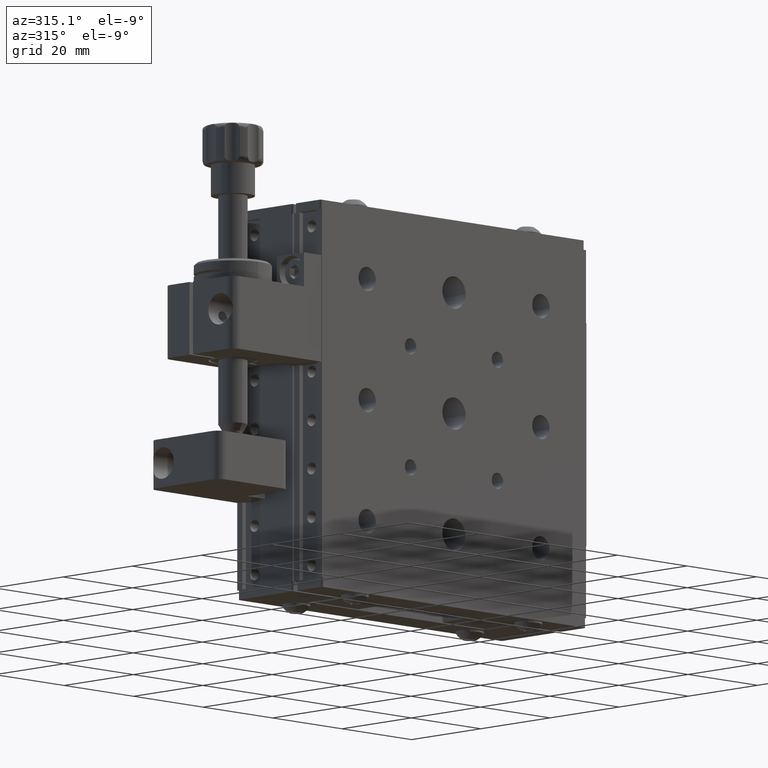
[diagram: clean part render]
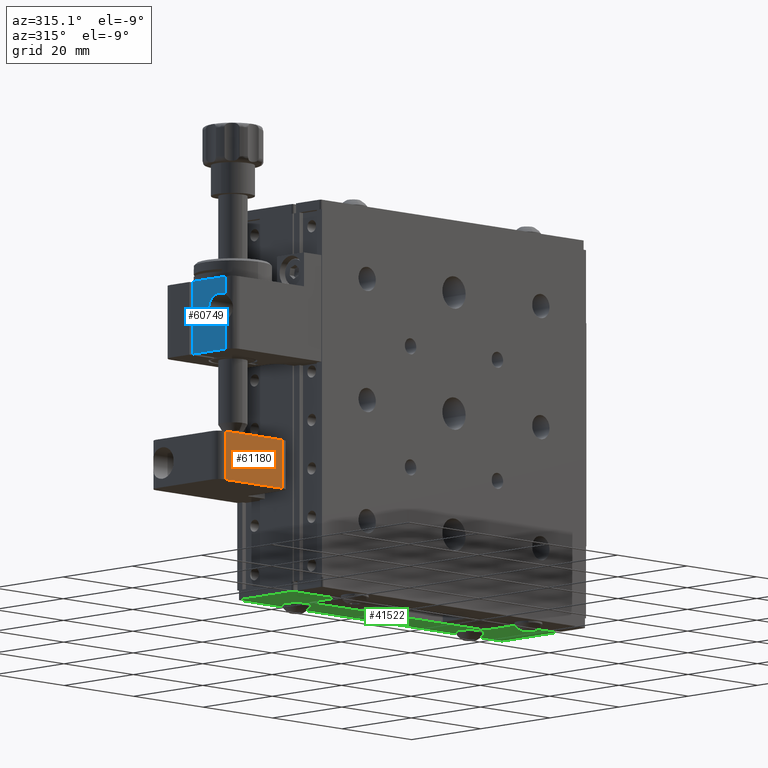
[diagram: same view with three faces highlighted in distinct colors, each labeled with its STEP entity id]
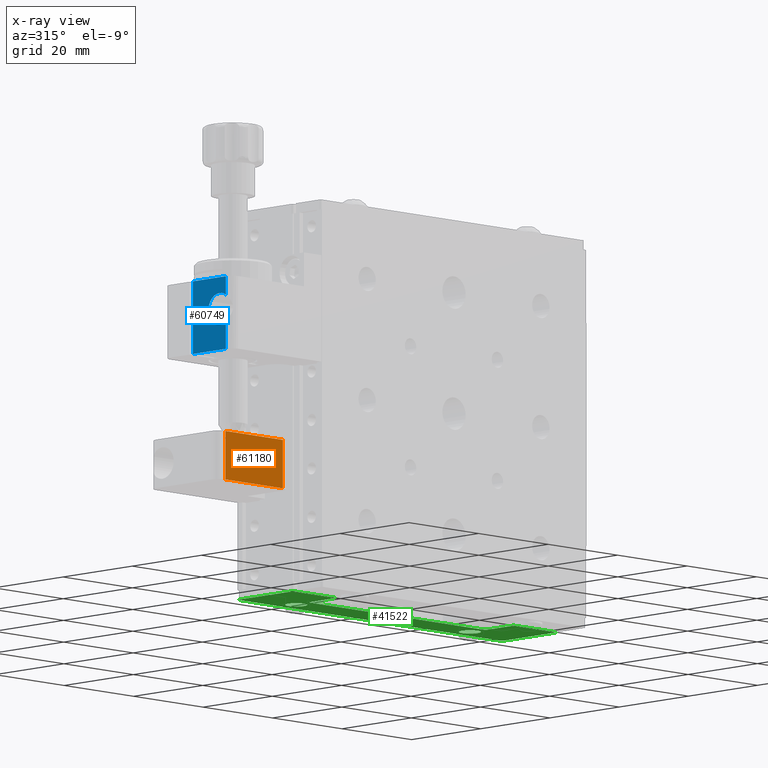
[diagram: x-ray of the same camera — body ghosted, the three highlighted faces saturated]
A machine part, auxiliary view with three faces highlighted in distinct colors.
The next image is the same camera in x-ray (body ghosted, the three faces saturated) — at least one of them is partly hidden behind the body in this view.
Their STEP definitions:

[orange] entity #61180 — the highlighted planar face has unit normal (-0, 1, 0).
#632 = CARTESIAN_POINT ( 'NONE',  ( -39.79442417223154400, -6.593557784389425100, 91.10000000000003700 ) ) ;
#5248 = EDGE_CURVE ( 'NONE', #44228, #25879, #70209, .T. ) ;
#6368 = DIRECTION ( 'NONE',  ( 1.000000000000000000, 1.203058634489234800E-016, 2.289316593276503000E-017 ) ) ;
#8033 = FACE_OUTER_BOUND ( 'NONE', #24962, .T. ) ;
#8449 = CARTESIAN_POINT ( 'NONE',  ( -39.79442417223154400, -6.593557784389425100, 101.1000000000000500 ) ) ;
#8533 = AXIS2_PLACEMENT_3D ( 'NONE', #56033, #33844, #73676 ) ;
#9618 = CARTESIAN_POINT ( 'NONE',  ( -39.79442417223154400, -6.593557784389425100, 101.1000000000000500 ) ) ;
#10204 = ORIENTED_EDGE ( 'NONE', *, *, #64237, .T. ) ;
#10652 = ORIENTED_EDGE ( 'NONE', *, *, #5248, .F. ) ;
#15786 = LINE ( 'NONE', #632, #69240 ) ;
#16208 = PLANE ( 'NONE',  #8533 ) ;
#21451 = VERTEX_POINT ( 'NONE', #33785 ) ;
#22332 = ORIENTED_EDGE ( 'NONE', *, *, #29793, .T. ) ;
#23547 = CARTESIAN_POINT ( 'NONE',  ( -23.29442417223155100, -6.593557784389434900, 101.1000000000000500 ) ) ;
#24395 = DIRECTION ( 'NONE',  ( 2.289316593276503000E-017, 2.754182094620802100E-033, -1.000000000000000000 ) ) ;
#24962 = EDGE_LOOP ( 'NONE', ( #10204, #10652, #66818, #22332 ) ) ;
#25879 = VERTEX_POINT ( 'NONE', #61991 ) ;
#26577 = VECTOR ( 'NONE', #24395, 1000.000000000000000 ) ;
#29793 = EDGE_CURVE ( 'NONE', #21451, #33682, #65027, .T. ) ;
#32108 = EDGE_CURVE ( 'NONE', #21451, #44228, #45455, .T. ) ;
#33682 = VERTEX_POINT ( 'NONE', #42855 ) ;
#33785 = CARTESIAN_POINT ( 'NONE',  ( -39.79442417223154400, -6.593557784389425100, 101.1000000000000500 ) ) ;
#33844 = DIRECTION ( 'NONE',  ( -1.203058634489235300E-016, 1.000000000000000000, 2.429008568531787400E-047 ) ) ;
#36554 = DIRECTION ( 'NONE',  ( 2.289316593276503000E-017, 2.754182094620802100E-033, -1.000000000000000000 ) ) ;
#42855 = CARTESIAN_POINT ( 'NONE',  ( -39.79442417223154400, -6.593557784389425100, 91.10000000000003700 ) ) ;
#44228 = VERTEX_POINT ( 'NONE', #23547 ) ;
#45455 = LINE ( 'NONE', #9618, #62415 ) ;
#48759 = DIRECTION ( 'NONE',  ( 1.000000000000000000, 1.203058634489234800E-016, 2.289316593276503000E-017 ) ) ;
#49859 = VECTOR ( 'NONE', #36554, 1000.000000000000000 ) ;
#56033 = CARTESIAN_POINT ( 'NONE',  ( -39.79442417223154400, -6.593557784389425100, 101.1000000000000500 ) ) ;
#61180 = ADVANCED_FACE ( 'NONE', ( #8033 ), #16208, .F. ) ;
#61991 = CARTESIAN_POINT ( 'NONE',  ( -23.29442417223155100, -6.593557784389434900, 91.10000000000003700 ) ) ;
#62415 = VECTOR ( 'NONE', #48759, 1000.000000000000000 ) ;
#64237 = EDGE_CURVE ( 'NONE', #33682, #25879, #15786, .T. ) ;
#65027 = LINE ( 'NONE', #8449, #49859 ) ;
#66818 = ORIENTED_EDGE ( 'NONE', *, *, #32108, .F. ) ;
#68966 = CARTESIAN_POINT ( 'NONE',  ( -23.29442417223155100, -6.593557784389434900, 101.1000000000000500 ) ) ;
#69240 = VECTOR ( 'NONE', #6368, 1000.000000000000000 ) ;
#70209 = LINE ( 'NONE', #68966, #26577 ) ;
#73676 = DIRECTION ( 'NONE',  ( 2.289316593276503000E-017, 2.754182094620802100E-033, -1.000000000000000000 ) ) ;

[blue] entity #60749 — the highlighted planar face has unit normal (-1, -0, 0).
#95 = EDGE_CURVE ( 'NONE', #144, #29883, #34826, .T. ) ;
#144 = VERTEX_POINT ( 'NONE', #47159 ) ;
#1555 = LINE ( 'NONE', #63105, #65755 ) ;
#2075 = DIRECTION ( 'NONE',  ( -4.820006804543042200E-016, -2.775557561562434100E-017, -1.000000000000000000 ) ) ;
#2531 = LINE ( 'NONE', #53891, #8780 ) ;
#2789 = ORIENTED_EDGE ( 'NONE', *, *, #63059, .F. ) ;
#3053 = CARTESIAN_POINT ( 'NONE',  ( -41.79442417223182100, -6.893557784391541400, 126.1000000000000200 ) ) ;
#3818 = CARTESIAN_POINT ( 'NONE',  ( -41.79442417223182100, -8.693557784391540400, 117.6000000000000900 ) ) ;
#8517 = CARTESIAN_POINT ( 'NONE',  ( -41.79442417223183500, 0.8064422156084926100, 132.6000000000000500 ) ) ;
#8780 = VECTOR ( 'NONE', #2075, 1000.000000000000000 ) ;
#9209 = AXIS2_PLACEMENT_3D ( 'NONE', #3053, #20780, #43150 ) ;
#9919 = DIRECTION ( 'NONE',  ( -1.357447931497564300E-015, 1.000000000000000000, -2.775557561563348600E-017 ) ) ;
#10874 = EDGE_CURVE ( 'NONE', #25172, #27396, #51038, .T. ) ;
#12264 = ORIENTED_EDGE ( 'NONE', *, *, #19256, .F. ) ;
#13338 = EDGE_CURVE ( 'NONE', #29883, #25172, #53952, .T. ) ;
#14330 = DIRECTION ( 'NONE',  ( -4.820006804543042200E-016, -2.775557561562434100E-017, -1.000000000000000000 ) ) ;
#15394 = CARTESIAN_POINT ( 'NONE',  ( -41.79442417223182100, -6.893557784391526300, 122.8500000000000100 ) ) ;
#18367 = EDGE_CURVE ( 'NONE', #61598, #144, #48396, .T. ) ;
#18794 = DIRECTION ( 'NONE',  ( 0.0000000000000000000, 0.0000000000000000000, 1.000000000000000000 ) ) ;
#19115 = EDGE_CURVE ( 'NONE', #60527, #73517, #1555, .T. ) ;
#19256 = EDGE_CURVE ( 'NONE', #27396, #35115, #30092, .T. ) ;
#19308 = ORIENTED_EDGE ( 'NONE', *, *, #18367, .F. ) ;
#19560 = DIRECTION ( 'NONE',  ( -4.820006804543042200E-016, -2.775557561562434100E-017, -1.000000000000000000 ) ) ;
#20780 = DIRECTION ( 'NONE',  ( -1.000000000000000000, -1.357447931497556000E-015, 4.820006804543057000E-016 ) ) ;
#22651 = ORIENTED_EDGE ( 'NONE', *, *, #19115, .T. ) ;
#25172 = VERTEX_POINT ( 'NONE', #38405 ) ;
#25749 = DIRECTION ( 'NONE',  ( 0.0000000000000000000, 0.0000000000000000000, 1.000000000000000000 ) ) ;
#26004 = DIRECTION ( 'NONE',  ( -1.000000000000000000, -1.357447931497556000E-015, 4.820006804543057000E-016 ) ) ;
#26170 = VECTOR ( 'NONE', #14330, 1000.000000000000000 ) ;
#27396 = VERTEX_POINT ( 'NONE', #3818 ) ;
#28180 = AXIS2_PLACEMENT_3D ( 'NONE', #58416, #35227, #18794 ) ;
#28796 = ORIENTED_EDGE ( 'NONE', *, *, #30362, .T. ) ;
#29883 = VERTEX_POINT ( 'NONE', #15394 ) ;
#29969 = CARTESIAN_POINT ( 'NONE',  ( -41.79442417223187800, 0.8064422156084681800, 139.6000000000000500 ) ) ;
#30092 = LINE ( 'NONE', #66479, #35429 ) ;
#30194 = DIRECTION ( 'NONE',  ( 4.820006804543042200E-016, 2.775557561562434100E-017, 1.000000000000000000 ) ) ;
#30362 = EDGE_CURVE ( 'NONE', #73517, #35115, #49446, .T. ) ;
#31625 = CARTESIAN_POINT ( 'NONE',  ( -41.79442417223187100, -8.693557784391540400, 128.8060118255469900 ) ) ;
#34826 = CIRCLE ( 'NONE', #28180, 3.250000000000002700 ) ;
#35115 = VERTEX_POINT ( 'NONE', #61380 ) ;
#35227 = DIRECTION ( 'NONE',  ( -1.000000000000000000, -1.357447931497556000E-015, 4.820006804543057000E-016 ) ) ;
#35429 = VECTOR ( 'NONE', #9919, 1000.000000000000000 ) ;
#37194 = CARTESIAN_POINT ( 'NONE',  ( -41.79442417223182100, -6.893557784391541400, 126.1000000000000200 ) ) ;
#37467 = CARTESIAN_POINT ( 'NONE',  ( -41.79442417223186400, -8.693557784391527900, 139.6000000000000500 ) ) ;
#38405 = CARTESIAN_POINT ( 'NONE',  ( -41.79442417223187100, -8.693557784391540400, 123.3939881744531600 ) ) ;
#41015 = FACE_OUTER_BOUND ( 'NONE', #50491, .T. ) ;
#41404 = DIRECTION ( 'NONE',  ( -1.000000000000000000, -1.357447931497556000E-015, 4.820006804543042200E-016 ) ) ;
#43150 = DIRECTION ( 'NONE',  ( 0.0000000000000000000, 0.0000000000000000000, 1.000000000000000000 ) ) ;
#45039 = ORIENTED_EDGE ( 'NONE', *, *, #10874, .F. ) ;
#45371 = CARTESIAN_POINT ( 'NONE',  ( -41.79442417223182100, -8.693557784391540400, 132.6000000000000500 ) ) ;
#47159 = CARTESIAN_POINT ( 'NONE',  ( -41.79442417223182100, -6.893557784391526300, 129.3500000000000200 ) ) ;
#48396 = CIRCLE ( 'NONE', #49558, 3.250000000000002700 ) ;
#49446 = LINE ( 'NONE', #69876, #64540 ) ;
#49558 = AXIS2_PLACEMENT_3D ( 'NONE', #37194, #26004, #25749 ) ;
#50491 = EDGE_LOOP ( 'NONE', ( #19308, #2789, #22651, #28796, #12264, #45039, #65493, #53553 ) ) ;
#51038 = LINE ( 'NONE', #37467, #26170 ) ;
#53553 = ORIENTED_EDGE ( 'NONE', *, *, #95, .F. ) ;
#53891 = CARTESIAN_POINT ( 'NONE',  ( -41.79442417223186400, -8.693557784391527900, 139.6000000000000500 ) ) ;
#53952 = CIRCLE ( 'NONE', #9209, 3.250000000000002700 ) ;
#58416 = CARTESIAN_POINT ( 'NONE',  ( -41.79442417223182100, -6.893557784391541400, 126.1000000000000200 ) ) ;
#60527 = VERTEX_POINT ( 'NONE', #45371 ) ;
#60749 = ADVANCED_FACE ( 'NONE', ( #41015 ), #64330, .T. ) ;
#61380 = CARTESIAN_POINT ( 'NONE',  ( -41.79442417223183500, 0.8064422156084679600, 117.6000000000000900 ) ) ;
#61598 = VERTEX_POINT ( 'NONE', #31625 ) ;
#63059 = EDGE_CURVE ( 'NONE', #60527, #61598, #2531, .T. ) ;
#63105 = CARTESIAN_POINT ( 'NONE',  ( -41.79442417223181400, -10.69355778439154900, 132.6000000000000500 ) ) ;
#64330 = PLANE ( 'NONE',  #69599 ) ;
#64540 = VECTOR ( 'NONE', #19560, 1000.000000000000000 ) ;
#65493 = ORIENTED_EDGE ( 'NONE', *, *, #13338, .F. ) ;
#65755 = VECTOR ( 'NONE', #68854, 1000.000000000000000 ) ;
#66479 = CARTESIAN_POINT ( 'NONE',  ( -41.79442417223183500, 0.8064422156084679600, 117.6000000000000900 ) ) ;
#68854 = DIRECTION ( 'NONE',  ( -1.357447931497564300E-015, 1.000000000000000000, -2.775557561563348600E-017 ) ) ;
#69599 = AXIS2_PLACEMENT_3D ( 'NONE', #29969, #41404, #30194 ) ;
#69876 = CARTESIAN_POINT ( 'NONE',  ( -41.79442417223187800, 0.8064422156084681800, 139.6000000000000500 ) ) ;
#73517 = VERTEX_POINT ( 'NONE', #8517 ) ;

[green] entity #41522 — the highlighted planar face has unit normal (-0, 0, -1).
#125 = EDGE_LOOP ( 'NONE', ( #5340, #60146, #20312, #5584, #50292, #41990, #37412, #21578, #14414, #11739, #65329, #4791, #12861, #63208, #16444, #65991 ) ) ;
#555 = AXIS2_PLACEMENT_3D ( 'NONE', #15312, #9794, #38199 ) ;
#2069 = EDGE_CURVE ( 'NONE', #17607, #66368, #21824, .T. ) ;
#2757 = CIRCLE ( 'NONE', #29046, 0.5000000000000004400 ) ;
#4006 = CARTESIAN_POINT ( 'NONE',  ( -4.294424172231903600, -1.893557784389996200, 71.10000000000005100 ) ) ;
#4791 = ORIENTED_EDGE ( 'NONE', *, *, #40542, .T. ) ;
#4797 = EDGE_CURVE ( 'NONE', #72614, #23340, #14122, .T. ) ;
#5340 = ORIENTED_EDGE ( 'NONE', *, *, #31986, .T. ) ;
#5572 = CIRCLE ( 'NONE', #555, 2.250000000000008900 ) ;
#5584 = ORIENTED_EDGE ( 'NONE', *, *, #8672, .T. ) ;
#6331 = VERTEX_POINT ( 'NONE', #71011 ) ;
#6476 = CIRCLE ( 'NONE', #22811, 2.250000000000016000 ) ;
#7585 = VERTEX_POINT ( 'NONE', #72205 ) ;
#8322 = DIRECTION ( 'NONE',  ( -5.162157954509712100E-019, 4.670716073076962700E-018, -1.000000000000000000 ) ) ;
#8554 = CIRCLE ( 'NONE', #47191, 2.250000000000016000 ) ;
#8672 = EDGE_CURVE ( 'NONE', #73214, #32378, #2757, .T. ) ;
#8796 = VERTEX_POINT ( 'NONE', #73208 ) ;
#9557 = VECTOR ( 'NONE', #71390, 1000.000000000000000 ) ;
#9620 = VECTOR ( 'NONE', #57542, 1000.000000000000000 ) ;
#9794 = DIRECTION ( 'NONE',  ( -5.162157954509712100E-019, 4.670716073076962700E-018, -1.000000000000000000 ) ) ;
#10335 = DIRECTION ( 'NONE',  ( -5.162157954509712100E-019, 4.670716073076962700E-018, -1.000000000000000000 ) ) ;
#10756 = AXIS2_PLACEMENT_3D ( 'NONE', #28647, #67505, #22698 ) ;
#10947 = EDGE_CURVE ( 'NONE', #11488, #33968, #5572, .T. ) ;
#10983 = CARTESIAN_POINT ( 'NONE',  ( 59.70557582776826400, 13.40644221560996400, 71.10000000000005100 ) ) ;
#11019 = CARTESIAN_POINT ( 'NONE',  ( 59.20557582776826400, 13.40644221560996400, 71.10000000000005100 ) ) ;
#11488 = VERTEX_POINT ( 'NONE', #64725 ) ;
#11582 = AXIS2_PLACEMENT_3D ( 'NONE', #4006, #17417, #12657 ) ;
#11739 = ORIENTED_EDGE ( 'NONE', *, *, #39802, .T. ) ;
#12536 = LINE ( 'NONE', #57380, #28600 ) ;
#12553 = CARTESIAN_POINT ( 'NONE',  ( 59.70557582776825000, -1.893557784390081300, 71.10000000000005100 ) ) ;
#12605 = VERTEX_POINT ( 'NONE', #27374 ) ;
#12657 = DIRECTION ( 'NONE',  ( 1.000000000000000000, -1.301042606982601800E-015, 0.0000000000000000000 ) ) ;
#12861 = ORIENTED_EDGE ( 'NONE', *, *, #60537, .T. ) ;
#13226 = DIRECTION ( 'NONE',  ( 1.000000000000000000, -7.709882115452421000E-016, 0.0000000000000000000 ) ) ;
#14122 = LINE ( 'NONE', #49106, #71136 ) ;
#14414 = ORIENTED_EDGE ( 'NONE', *, *, #4797, .T. ) ;
#14555 = CARTESIAN_POINT ( 'NONE',  ( 59.20557582776824300, -1.893557784390081300, 71.10000000000005100 ) ) ;
#15016 = DIRECTION ( 'NONE',  ( 1.000588500943418400E-014, 1.000000000000000000, 4.670716072896668000E-018 ) ) ;
#15191 = DIRECTION ( 'NONE',  ( -1.280796846921206400E-015, 1.000000000000000000, 4.670716072896675700E-018 ) ) ;
#15207 = CARTESIAN_POINT ( 'NONE',  ( -1.044424172231880100, 9.606442215610036000, 71.10000000000005100 ) ) ;
#15312 = CARTESIAN_POINT ( 'NONE',  ( 46.70557582776827100, 9.606442215609988000, 71.10000000000005100 ) ) ;
#16307 = CARTESIAN_POINT ( 'NONE',  ( -15.79442417223194500, 13.40644221561005800, 71.10000000000005100 ) ) ;
#16444 = ORIENTED_EDGE ( 'NONE', *, *, #63440, .T. ) ;
#16671 = CARTESIAN_POINT ( 'NONE',  ( 47.70557582776825700, -1.893557784390065700, 71.10000000000005100 ) ) ;
#17417 = DIRECTION ( 'NONE',  ( -5.162157954509712100E-019, 4.670716073076962700E-018, -1.000000000000000000 ) ) ;
#17576 = LINE ( 'NONE', #25526, #22928 ) ;
#17607 = VERTEX_POINT ( 'NONE', #46983 ) ;
#18031 = EDGE_CURVE ( 'NONE', #6331, #39722, #25257, .T. ) ;
#18279 = CIRCLE ( 'NONE', #44348, 2.250000000000008900 ) ;
#18488 = EDGE_CURVE ( 'NONE', #54447, #73214, #18950, .T. ) ;
#18950 = LINE ( 'NONE', #48591, #49242 ) ;
#20295 = DIRECTION ( 'NONE',  ( 1.000000000000000000, -1.301042606982604100E-015, 0.0000000000000000000 ) ) ;
#20312 = ORIENTED_EDGE ( 'NONE', *, *, #18488, .T. ) ;
#20606 = EDGE_CURVE ( 'NONE', #7585, #72614, #31229, .T. ) ;
#20881 = EDGE_CURVE ( 'NONE', #8796, #54447, #34686, .T. ) ;
#21116 = DIRECTION ( 'NONE',  ( 5.162157954509712100E-019, -4.670716073076962700E-018, 1.000000000000000000 ) ) ;
#21578 = ORIENTED_EDGE ( 'NONE', *, *, #20606, .T. ) ;
#21824 = CIRCLE ( 'NONE', #11582, 0.5000000000000013300 ) ;
#22208 = ORIENTED_EDGE ( 'NONE', *, *, #10947, .F. ) ;
#22664 = CARTESIAN_POINT ( 'NONE',  ( 47.20557582776825700, -1.893557784390062200, 71.10000000000005100 ) ) ;
#22698 = DIRECTION ( 'NONE',  ( 1.000000000000000000, -1.734723475976802600E-015, 0.0000000000000000000 ) ) ;
#22811 = AXIS2_PLACEMENT_3D ( 'NONE', #25185, #53282, #13226 ) ;
#22928 = VECTOR ( 'NONE', #31483, 1000.000000000000000 ) ;
#22995 = LINE ( 'NONE', #51308, #9620 ) ;
#23265 = DIRECTION ( 'NONE',  ( -5.162157954509712100E-019, 4.670716073076962700E-018, -1.000000000000000000 ) ) ;
#23340 = VERTEX_POINT ( 'NONE', #51188 ) ;
#24384 = AXIS2_PLACEMENT_3D ( 'NONE', #16671, #67677, #32851 ) ;
#24916 = EDGE_CURVE ( 'NONE', #41478, #48527, #54412, .T. ) ;
#25141 = CARTESIAN_POINT ( 'NONE',  ( 59.20557582776824300, -2.393557784390093700, 71.10000000000005100 ) ) ;
#25185 = CARTESIAN_POINT ( 'NONE',  ( -3.294424172231889000, 9.606442215610039500, 71.10000000000005100 ) ) ;
#25257 = CIRCLE ( 'NONE', #65289, 0.5000000000000022200 ) ;
#25526 = CARTESIAN_POINT ( 'NONE',  ( 59.70557582776825000, -2.393557784390069700, 71.10000000000005100 ) ) ;
#25602 = CARTESIAN_POINT ( 'NONE',  ( -3.794424172231893000, 5.606442215610004900, 71.10000000000005100 ) ) ;
#27374 = CARTESIAN_POINT ( 'NONE',  ( 46.70557582776832800, 5.606442215609971100, 71.10000000000005100 ) ) ;
#28463 = DIRECTION ( 'NONE',  ( -4.649058915617824300E-016, -1.000000000000000000, -4.670716072896674900E-018 ) ) ;
#28581 = DIRECTION ( 'NONE',  ( -5.162157954509712100E-019, 4.670716073076962700E-018, -1.000000000000000000 ) ) ;
#28600 = VECTOR ( 'NONE', #28463, 1000.000000000000000 ) ;
#28647 = CARTESIAN_POINT ( 'NONE',  ( -3.294424172231913400, 5.106442215609997800, 71.10000000000005100 ) ) ;
#28751 = PLANE ( 'NONE',  #36093 ) ;
#29046 = AXIS2_PLACEMENT_3D ( 'NONE', #42895, #8322, #71295 ) ;
#29525 = CARTESIAN_POINT ( 'NONE',  ( -4.294424172231928500, -2.393557784390020900, 71.10000000000005100 ) ) ;
#29679 = CARTESIAN_POINT ( 'NONE',  ( -5.544424172231898300, 9.606442215610041300, 71.10000000000005100 ) ) ;
#31229 = CIRCLE ( 'NONE', #24384, 0.5000000000000004400 ) ;
#31483 = DIRECTION ( 'NONE',  ( -1.000000000000000000, 1.151856388048599100E-015, 5.162157954509071800E-019 ) ) ;
#31986 = EDGE_CURVE ( 'NONE', #39722, #8796, #73112, .T. ) ;
#32378 = VERTEX_POINT ( 'NONE', #73794 ) ;
#32667 = ORIENTED_EDGE ( 'NONE', *, *, #44749, .F. ) ;
#32851 = DIRECTION ( 'NONE',  ( 1.000000000000000000, -1.301042606982604100E-015, 0.0000000000000000000 ) ) ;
#33615 = FACE_BOUND ( 'NONE', #69885, .T. ) ;
#33968 = VERTEX_POINT ( 'NONE', #34566 ) ;
#34566 = CARTESIAN_POINT ( 'NONE',  ( 44.45557582776827100, 9.606442215609989800, 71.10000000000005100 ) ) ;
#34686 = CIRCLE ( 'NONE', #44836, 0.5000000000000022200 ) ;
#34856 = AXIS2_PLACEMENT_3D ( 'NONE', #14555, #49135, #20295 ) ;
#35092 = AXIS2_PLACEMENT_3D ( 'NONE', #55174, #21116, #60913 ) ;
#35208 = CARTESIAN_POINT ( 'NONE',  ( -3.794424172231927600, -2.393557784389996900, 71.10000000000005100 ) ) ;
#35944 = CARTESIAN_POINT ( 'NONE',  ( -3.294424172231889000, 9.606442215610039500, 71.10000000000005100 ) ) ;
#36093 = AXIS2_PLACEMENT_3D ( 'NONE', #35208, #40912, #68585 ) ;
#37123 = CARTESIAN_POINT ( 'NONE',  ( -16.29442417223193800, -2.393557784389993300, 71.10000000000005100 ) ) ;
#37412 = ORIENTED_EDGE ( 'NONE', *, *, #41778, .T. ) ;
#38005 = VERTEX_POINT ( 'NONE', #29679 ) ;
#38199 = DIRECTION ( 'NONE',  ( 1.000000000000000000, -7.709882115452445600E-016, 0.0000000000000000000 ) ) ;
#39190 = CARTESIAN_POINT ( 'NONE',  ( 46.70557582776827100, 9.606442215609988000, 71.10000000000005100 ) ) ;
#39722 = VERTEX_POINT ( 'NONE', #66620 ) ;
#39802 = EDGE_CURVE ( 'NONE', #23340, #12605, #42307, .T. ) ;
#40524 = DIRECTION ( 'NONE',  ( 1.000000000000000000, 0.0000000000000000000, 0.0000000000000000000 ) ) ;
#40542 = EDGE_CURVE ( 'NONE', #44840, #64390, #67558, .T. ) ;
#40912 = DIRECTION ( 'NONE',  ( -5.162157954509018800E-019, 4.670716073076962700E-018, -1.000000000000000000 ) ) ;
#41478 = VERTEX_POINT ( 'NONE', #12553 ) ;
#41522 = ADVANCED_FACE ( 'NONE', ( #68362, #73678, #33615 ), #28751, .T. ) ;
#41778 = EDGE_CURVE ( 'NONE', #48527, #7585, #17576, .T. ) ;
#41990 = ORIENTED_EDGE ( 'NONE', *, *, #24916, .T. ) ;
#42307 = CIRCLE ( 'NONE', #35092, 0.5000000000000004400 ) ;
#42843 = ORIENTED_EDGE ( 'NONE', *, *, #44280, .F. ) ;
#42895 = CARTESIAN_POINT ( 'NONE',  ( 59.20557582776826400, 12.90644221560996200, 71.10000000000005100 ) ) ;
#43763 = EDGE_LOOP ( 'NONE', ( #57216, #42843 ) ) ;
#44117 = DIRECTION ( 'NONE',  ( -4.758851540679645000E-016, -1.000000000000000000, -4.670716072896674900E-018 ) ) ;
#44280 = EDGE_CURVE ( 'NONE', #73602, #38005, #8554, .T. ) ;
#44348 = AXIS2_PLACEMENT_3D ( 'NONE', #39190, #10335, #44429 ) ;
#44429 = DIRECTION ( 'NONE',  ( 1.000000000000000000, -7.709882115452445600E-016, 0.0000000000000000000 ) ) ;
#44749 = EDGE_CURVE ( 'NONE', #33968, #11488, #18279, .T. ) ;
#44836 = AXIS2_PLACEMENT_3D ( 'NONE', #68671, #28581, #40524 ) ;
#44840 = VERTEX_POINT ( 'NONE', #44929 ) ;
#44929 = CARTESIAN_POINT ( 'NONE',  ( -3.294424172231892500, 5.606442215610011100, 71.10000000000005100 ) ) ;
#46983 = CARTESIAN_POINT ( 'NONE',  ( -3.794424172231903600, -1.893557784390008400, 71.10000000000005100 ) ) ;
#47191 = AXIS2_PLACEMENT_3D ( 'NONE', #35944, #64615, #52148 ) ;
#48226 = LINE ( 'NONE', #10983, #59808 ) ;
#48527 = VERTEX_POINT ( 'NONE', #25141 ) ;
#48591 = CARTESIAN_POINT ( 'NONE',  ( -16.29442417223194500, 13.40644221561004700, 71.10000000000005100 ) ) ;
#49106 = CARTESIAN_POINT ( 'NONE',  ( 47.20557582776837100, 5.606442215609971100, 71.10000000000005100 ) ) ;
#49135 = DIRECTION ( 'NONE',  ( -5.162157954509712100E-019, 4.670716073076962700E-018, -1.000000000000000000 ) ) ;
#49242 = VECTOR ( 'NONE', #65969, 1000.000000000000000 ) ;
#50292 = ORIENTED_EDGE ( 'NONE', *, *, #69097, .T. ) ;
#51188 = CARTESIAN_POINT ( 'NONE',  ( 47.20557582776832800, 5.106442215609964900, 71.10000000000005100 ) ) ;
#51308 = CARTESIAN_POINT ( 'NONE',  ( -3.794424172231927600, -2.393557784389996900, 71.10000000000005100 ) ) ;
#52148 = DIRECTION ( 'NONE',  ( 1.000000000000000000, -7.709882115452421000E-016, 0.0000000000000000000 ) ) ;
#53282 = DIRECTION ( 'NONE',  ( -5.162157954509712100E-019, 4.670716073076962700E-018, -1.000000000000000000 ) ) ;
#54412 = CIRCLE ( 'NONE', #34856, 0.5000000000000004400 ) ;
#54447 = VERTEX_POINT ( 'NONE', #16307 ) ;
#55174 = CARTESIAN_POINT ( 'NONE',  ( 46.70557582776832100, 5.106442215609983600, 71.10000000000005100 ) ) ;
#56800 = LINE ( 'NONE', #25602, #9557 ) ;
#57216 = ORIENTED_EDGE ( 'NONE', *, *, #59395, .F. ) ;
#57380 = CARTESIAN_POINT ( 'NONE',  ( -3.794424172231893000, 5.606442215610004900, 71.10000000000005100 ) ) ;
#57392 = CARTESIAN_POINT ( 'NONE',  ( -15.79442417223194500, -1.893557784389992700, 71.10000000000005100 ) ) ;
#57542 = DIRECTION ( 'NONE',  ( -1.000000000000000000, 1.151856388048599100E-015, 5.162157954509071800E-019 ) ) ;
#59395 = EDGE_CURVE ( 'NONE', #38005, #73602, #6476, .T. ) ;
#59808 = VECTOR ( 'NONE', #44117, 1000.000000000000000 ) ;
#60146 = ORIENTED_EDGE ( 'NONE', *, *, #20881, .T. ) ;
#60537 = EDGE_CURVE ( 'NONE', #64390, #17607, #12536, .T. ) ;
#60913 = DIRECTION ( 'NONE',  ( 1.000000000000000000, -1.734723475976805500E-015, 0.0000000000000000000 ) ) ;
#63094 = DIRECTION ( 'NONE',  ( 1.000000000000000000, -1.301042606982599600E-015, 0.0000000000000000000 ) ) ;
#63208 = ORIENTED_EDGE ( 'NONE', *, *, #2069, .T. ) ;
#63440 = EDGE_CURVE ( 'NONE', #66368, #6331, #22995, .T. ) ;
#64390 = VERTEX_POINT ( 'NONE', #71275 ) ;
#64615 = DIRECTION ( 'NONE',  ( -5.162157954509712100E-019, 4.670716073076962700E-018, -1.000000000000000000 ) ) ;
#64725 = CARTESIAN_POINT ( 'NONE',  ( 48.95557582776827100, 9.606442215609984500, 71.10000000000005100 ) ) ;
#65289 = AXIS2_PLACEMENT_3D ( 'NONE', #57392, #23265, #63094 ) ;
#65329 = ORIENTED_EDGE ( 'NONE', *, *, #71730, .T. ) ;
#65969 = DIRECTION ( 'NONE',  ( 1.000000000000000000, -1.086233624977107900E-015, -5.162157954509068900E-019 ) ) ;
#65991 = ORIENTED_EDGE ( 'NONE', *, *, #18031, .T. ) ;
#66368 = VERTEX_POINT ( 'NONE', #29525 ) ;
#66620 = CARTESIAN_POINT ( 'NONE',  ( -16.29442417223194500, -1.893557784389992700, 71.10000000000005100 ) ) ;
#67505 = DIRECTION ( 'NONE',  ( 5.162157954509712100E-019, -4.670716073076962700E-018, 1.000000000000000000 ) ) ;
#67558 = CIRCLE ( 'NONE', #10756, 0.5000000000000013300 ) ;
#67677 = DIRECTION ( 'NONE',  ( -5.162157954509712100E-019, 4.670716073076962700E-018, -1.000000000000000000 ) ) ;
#67769 = VECTOR ( 'NONE', #15191, 1000.000000000000000 ) ;
#68362 = FACE_BOUND ( 'NONE', #43763, .T. ) ;
#68585 = DIRECTION ( 'NONE',  ( 1.000000000000000000, -1.151856388048599100E-015, -5.162157954509072700E-019 ) ) ;
#68671 = CARTESIAN_POINT ( 'NONE',  ( -15.79442417223193800, 12.90644221561005800, 71.10000000000005100 ) ) ;
#69097 = EDGE_CURVE ( 'NONE', #32378, #41478, #48226, .T. ) ;
#69885 = EDGE_LOOP ( 'NONE', ( #32667, #22208 ) ) ;
#71011 = CARTESIAN_POINT ( 'NONE',  ( -15.79442417223193800, -2.393557784389993300, 71.10000000000005100 ) ) ;
#71136 = VECTOR ( 'NONE', #15016, 1000.000000000000000 ) ;
#71275 = CARTESIAN_POINT ( 'NONE',  ( -3.794424172231913900, 5.106442215609999600, 71.10000000000005100 ) ) ;
#71295 = DIRECTION ( 'NONE',  ( 1.000000000000000000, 0.0000000000000000000, 0.0000000000000000000 ) ) ;
#71390 = DIRECTION ( 'NONE',  ( -1.000000000000000000, 6.076294151931322600E-016, 5.162157954509045800E-019 ) ) ;
#71730 = EDGE_CURVE ( 'NONE', #12605, #44840, #56800, .T. ) ;
#72205 = CARTESIAN_POINT ( 'NONE',  ( 47.70557582776825700, -2.393557784390066200, 71.10000000000005100 ) ) ;
#72614 = VERTEX_POINT ( 'NONE', #22664 ) ;
#73112 = LINE ( 'NONE', #37123, #67769 ) ;
#73208 = CARTESIAN_POINT ( 'NONE',  ( -16.29442417223193800, 12.90644221561004600, 71.10000000000005100 ) ) ;
#73214 = VERTEX_POINT ( 'NONE', #11019 ) ;
#73602 = VERTEX_POINT ( 'NONE', #15207 ) ;
#73678 = FACE_OUTER_BOUND ( 'NONE', #125, .T. ) ;
#73794 = CARTESIAN_POINT ( 'NONE',  ( 59.70557582776826400, 12.90644221560996200, 71.10000000000005100 ) ) ;